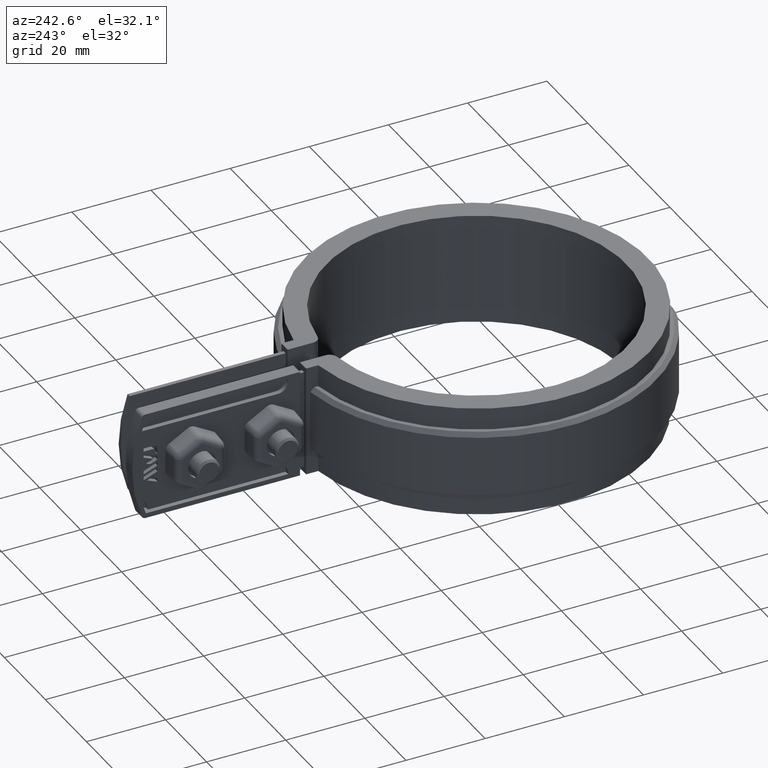
[diagram: clean part render]
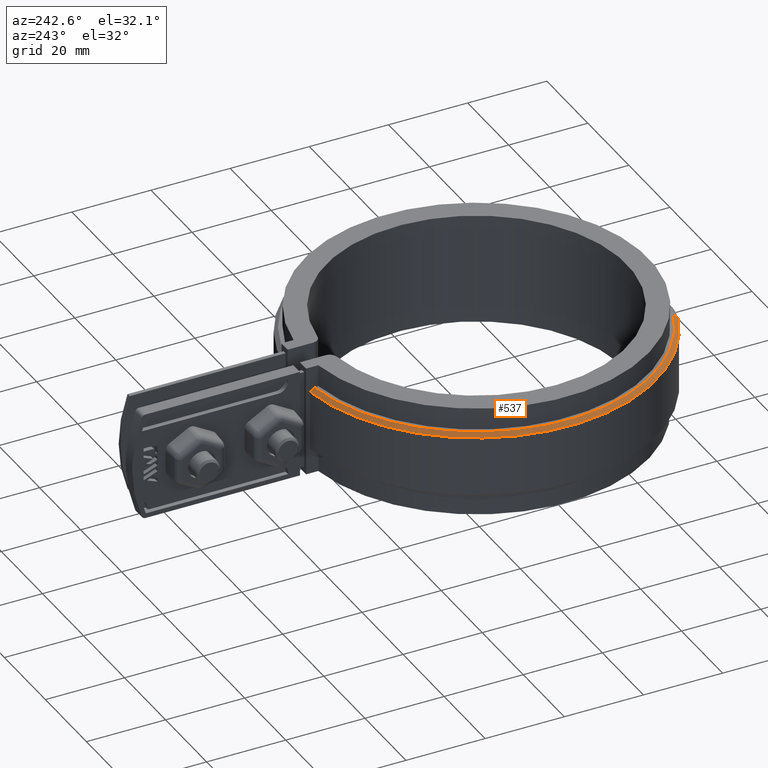
[diagram: same view with one face highlighted and labeled with its STEP entity id]
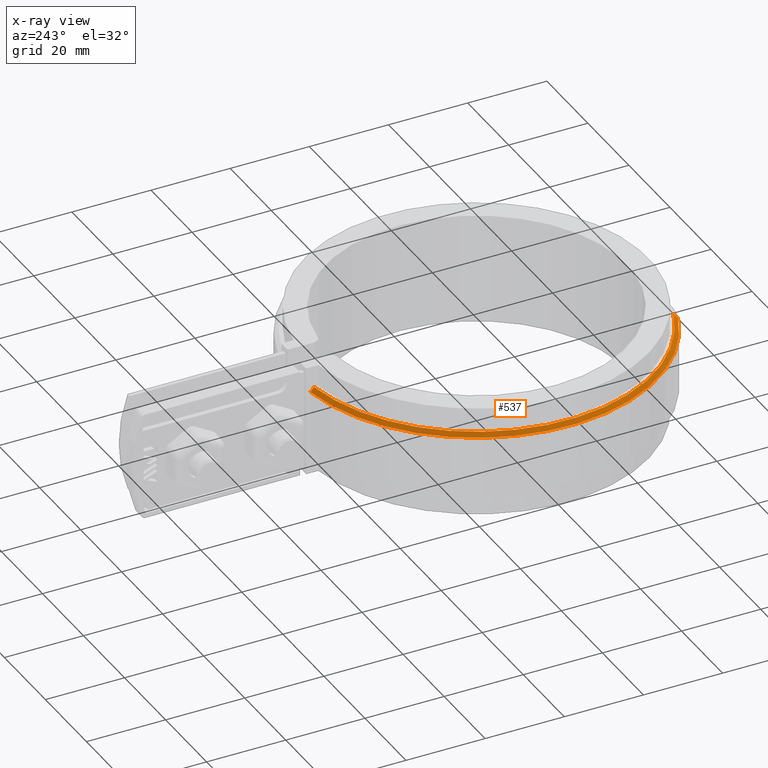
[diagram: x-ray of the same camera — body ghosted, the highlighted face saturated]
A machine part, auxiliary view. The second image highlights one B-rep face of the part: STEP entity #537.
The next image is the same camera in x-ray: the body ghosted, the highlighted face saturated — about 0% of this face is hidden behind the body in this view.
In plain terms, the highlighted conical surface has half-angle 45 deg.
Its self-contained STEP definition (entity closure, byte-faithful):
#537 = ADVANCED_FACE( '', ( #1001 ), #1002, .T. );
#1001 = FACE_OUTER_BOUND( '', #2070, .T. );
#1002 = CONICAL_SURFACE( '', #2071, 44.5000000000000, 0.785398163397445 );
#2070 = EDGE_LOOP( '', ( #4896, #4897, #4898, #4899 ) );
#2071 = AXIS2_PLACEMENT_3D( '', #4900, #4901, #4902 );
#4896 = ORIENTED_EDGE( '', *, *, #7768, .F. );
#4897 = ORIENTED_EDGE( '', *, *, #7769, .F. );
#4898 = ORIENTED_EDGE( '', *, *, #7770, .F. );
#4899 = ORIENTED_EDGE( '', *, *, #7771, .F. );
#4900 = CARTESIAN_POINT( '', ( -1.73472347597681E-015, 6.93889390390723E-015, 8.50000000000000 ) );
#4901 = DIRECTION( '', ( 0.000000000000000, 0.000000000000000, -1.00000000000000 ) );
#4902 = DIRECTION( '', ( -1.00000000000000, 0.000000000000000, 0.000000000000000 ) );
#7768 = EDGE_CURVE( '', #8970, #8971, #8972, .T. );
#7769 = EDGE_CURVE( '', #8973, #8970, #8974, .T. );
#7770 = EDGE_CURVE( '', #8975, #8973, #8976, .T. );
#7771 = EDGE_CURVE( '', #8971, #8975, #8977, .T. );
#8970 = VERTEX_POINT( '', #12246 );
#8971 = VERTEX_POINT( '', #12247 );
#8972 = B_SPLINE_CURVE_WITH_KNOTS( '', 3, ( #12248, #12249, #12250, #12251 ), .UNSPECIFIED., .F., .F., ( 4, 4 ), ( 707.042715669252, 707.044136269118 ), .UNSPECIFIED. );
#8973 = VERTEX_POINT( '', #12252 );
#8974 = CIRCLE( '', #12253, 45.5000000000000 );
#8975 = VERTEX_POINT( '', #12254 );
#8976 = LINE( '', #12255, #12256 );
#8977 = CIRCLE( '', #12257, 44.5000000000000 );
#12246 = CARTESIAN_POINT( '', ( -6.00000000000000, 45.1026606753970, 7.49999999999999 ) );
#12247 = CARTESIAN_POINT( '', ( -6.00000000000000, 44.0936503365281, 8.50000000000000 ) );
#12248 = CARTESIAN_POINT( '', ( -6.00000000000000, 45.1026606754200, 7.49999999997715 ) );
#12249 = CARTESIAN_POINT( '', ( -6.00000000000000, 44.7663570594295, 7.83336676648114 ) );
#12250 = CARTESIAN_POINT( '', ( -6.00000000000000, 44.4300210318231, 8.16670085793717 ) );
#12251 = CARTESIAN_POINT( '', ( -6.00000000000000, 44.0936503365603, 8.49999999996804 ) );
#12252 = CARTESIAN_POINT( '', ( -16.2051315524462, -42.5163934426229, 7.49999999999995 ) );
#12253 = AXIS2_PLACEMENT_3D( '', #14763, #14764, #14765 );
#12254 = CARTESIAN_POINT( '', ( -15.8489748150298, -41.5819672131147, 8.50000000000000 ) );
#12255 = CARTESIAN_POINT( '', ( -15.8489748150298, -41.5819672131147, 8.50000000000000 ) );
#12256 = VECTOR( '', #14766, 1000.00000000000 );
#12257 = AXIS2_PLACEMENT_3D( '', #14767, #14768, #14769 );
#14763 = CARTESIAN_POINT( '', ( -1.73472347597681E-015, 6.93889390390723E-015, 7.49999999999999 ) );
#14764 = DIRECTION( '', ( 0.000000000000000, 0.000000000000000, -1.00000000000000 ) );
#14765 = DIRECTION( '', ( -1.00000000000000, 0.000000000000000, 0.000000000000000 ) );
#14766 = DIRECTION( '', ( -0.251840844192412, -0.660739123403824, -0.707106781186548 ) );
#14767 = CARTESIAN_POINT( '', ( -1.73472347597681E-015, 6.93889390390723E-015, 8.50000000000000 ) );
#14768 = DIRECTION( '', ( 0.000000000000000, 0.000000000000000, 1.00000000000000 ) );
#14769 = DIRECTION( '', ( 1.00000000000000, 0.000000000000000, 0.000000000000000 ) );